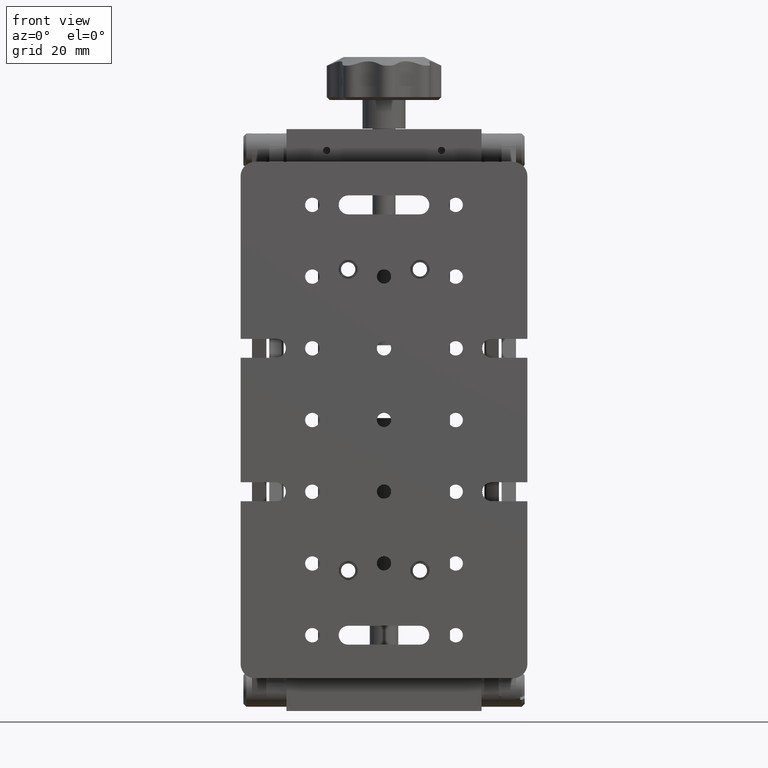
[diagram: clean part render]
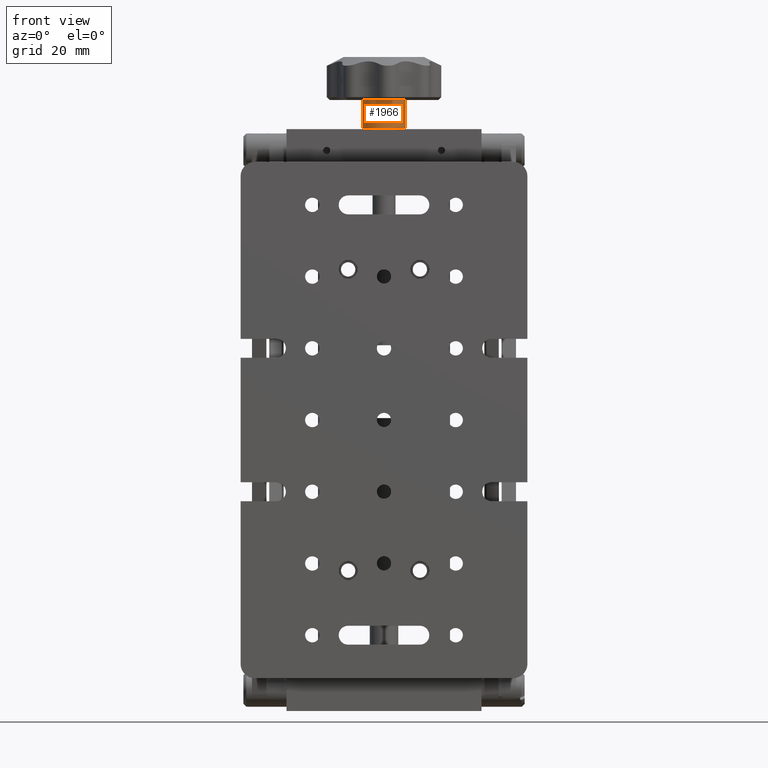
[diagram: same view with one face highlighted and labeled with its STEP entity id]
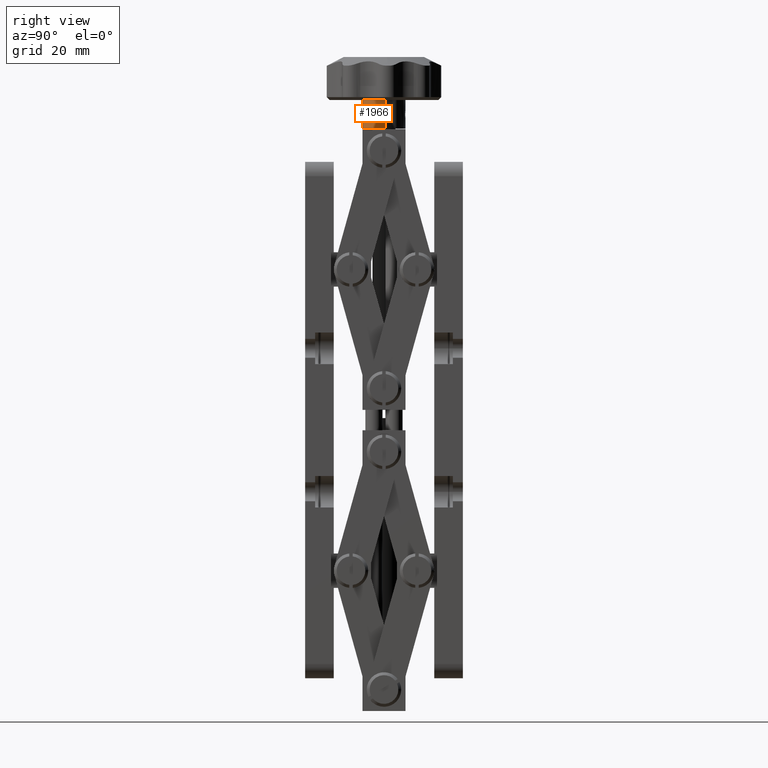
[diagram: same view with one face highlighted and labeled with its STEP entity id]
A machine part, front view. The second image highlights one B-rep face of the part: STEP entity #1966.
A second angle (right view) of the same face is appended — the face is thin or edge-on in the first view.
In plain terms, the highlighted cylindrical surface (edge-blend (fillet) strip) has radius 7.5 mm, axis along (0, -0, -1).
Its self-contained STEP definition (entity closure, byte-faithful):
#149 = ORIENTED_EDGE ( 'NONE', *, *, #19271, .F. ) ;
#335 = DIRECTION ( 'NONE',  ( 2.358787247327744800E-016, -1.029167336231908400E-016, -1.000000000000000000 ) ) ;
#520 = CARTESIAN_POINT ( 'NONE',  ( 6.177596079723437800E-014, 17.49999999999999600, 111.5663180491997500 ) ) ;
#1024 = FACE_OUTER_BOUND ( 'NONE', #13544, .T. ) ;
#1966 = ADVANCED_FACE ( 'NONE', ( #1024 ), #19008, .T. ) ;
#3313 = DIRECTION ( 'NONE',  ( 2.358787247327744800E-016, -1.029167336231908400E-016, -1.000000000000000000 ) ) ;
#4228 = VERTEX_POINT ( 'NONE', #6598 ) ;
#5187 = CIRCLE ( 'NONE', #20608, 7.500000000000000000 ) ;
#6598 = CARTESIAN_POINT ( 'NONE',  ( -7.482361324097209600, 16.98592897800635600, 101.5663180491997700 ) ) ;
#8569 = ORIENTED_EDGE ( 'NONE', *, *, #12765, .F. ) ;
#9630 = ORIENTED_EDGE ( 'NONE', *, *, #10658, .T. ) ;
#10658 = EDGE_CURVE ( 'NONE', #14112, #4228, #25763, .T. ) ;
#10710 = DIRECTION ( 'NONE',  ( 2.358787247327744800E-016, -1.029167336231908400E-016, -1.000000000000000000 ) ) ;
#10791 = DIRECTION ( 'NONE',  ( 0.9976481765463005600, 0.06854280293248545000, 0.0000000000000000000 ) ) ;
#11170 = AXIS2_PLACEMENT_3D ( 'NONE', #22939, #3313, #15050 ) ;
#11736 = VERTEX_POINT ( 'NONE', #20497 ) ;
#12385 = AXIS2_PLACEMENT_3D ( 'NONE', #520, #10710, #10791 ) ;
#12765 = EDGE_CURVE ( 'NONE', #24619, #4228, #5187, .T. ) ;
#13544 = EDGE_LOOP ( 'NONE', ( #21757, #9630, #8569, #149 ) ) ;
#13889 = CARTESIAN_POINT ( 'NONE',  ( -7.482361324097192700, 16.98592897800635600, 111.5663180491997500 ) ) ;
#14112 = VERTEX_POINT ( 'NONE', #25152 ) ;
#15050 = DIRECTION ( 'NONE',  ( 0.9976481765463005600, 0.06854280293248545000, 0.0000000000000000000 ) ) ;
#16027 = CARTESIAN_POINT ( 'NONE',  ( 7.482361324097316100, 18.01407102199364000, 111.5663180491997500 ) ) ;
#16982 = CARTESIAN_POINT ( 'NONE',  ( 4.336702349311825400E-014, 17.49999999999999600, 101.5663180491997700 ) ) ;
#18438 = DIRECTION ( 'NONE',  ( 0.9976481765463005600, 0.06854280293248545000, 0.0000000000000000000 ) ) ;
#19008 = CYLINDRICAL_SURFACE ( 'NONE', #12385, 7.500000000000000000 ) ;
#19271 = EDGE_CURVE ( 'NONE', #11736, #24619, #21186, .T. ) ;
#20497 = CARTESIAN_POINT ( 'NONE',  ( 7.482361324097316100, 18.01407102199364000, 111.5663180491997500 ) ) ;
#20608 = AXIS2_PLACEMENT_3D ( 'NONE', #16982, #20986, #18438 ) ;
#20986 = DIRECTION ( 'NONE',  ( 2.358787247327744800E-016, -1.029167336231908400E-016, -1.000000000000000000 ) ) ;
#21186 = LINE ( 'NONE', #16027, #23073 ) ;
#21618 = DIRECTION ( 'NONE',  ( 2.358787247327744800E-016, -1.029167336231908400E-016, -1.000000000000000000 ) ) ;
#21757 = ORIENTED_EDGE ( 'NONE', *, *, #23324, .T. ) ;
#21997 = VECTOR ( 'NONE', #21618, 1000.000000000000000 ) ;
#22939 = CARTESIAN_POINT ( 'NONE',  ( 6.177596079723437800E-014, 17.49999999999999600, 111.5663180491997500 ) ) ;
#23073 = VECTOR ( 'NONE', #335, 1000.000000000000000 ) ;
#23324 = EDGE_CURVE ( 'NONE', #11736, #14112, #24844, .T. ) ;
#23923 = CARTESIAN_POINT ( 'NONE',  ( 7.482361324097297500, 18.01407102199363700, 101.5663180491997700 ) ) ;
#24619 = VERTEX_POINT ( 'NONE', #23923 ) ;
#24844 = CIRCLE ( 'NONE', #11170, 7.500000000000000000 ) ;
#25152 = CARTESIAN_POINT ( 'NONE',  ( -7.482361324097191800, 16.98592897800635600, 111.5663180491997500 ) ) ;
#25763 = LINE ( 'NONE', #13889, #21997 ) ;